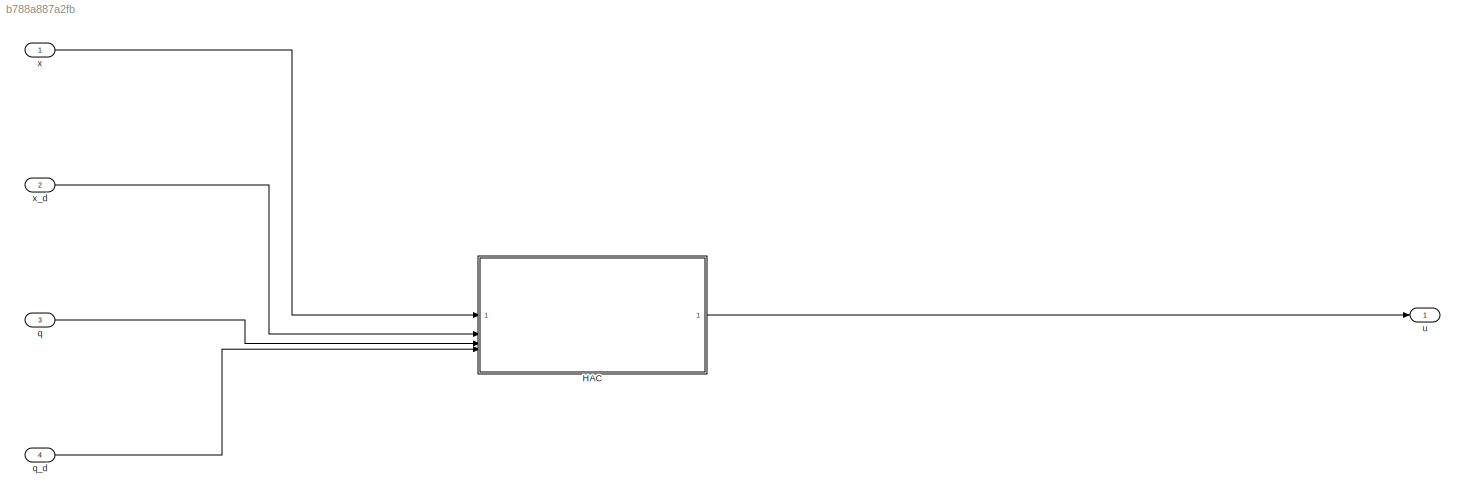
MODEL slx_b788a887a2fb
KIND model
CONFIG AbsTol = auto
CONFIG EnableMultiTasking = off
CONFIG FixedStep = auto
CONFIG MaxStep = auto
CONFIG MinStep = auto
CONFIG RelTol = 1e-3
CONFIG SampleTimeConstraint = Unconstrained
CONFIG SolverName = VariableStepAuto
CONFIG StartTime = 0.0
CONFIG StopTime = 10.0
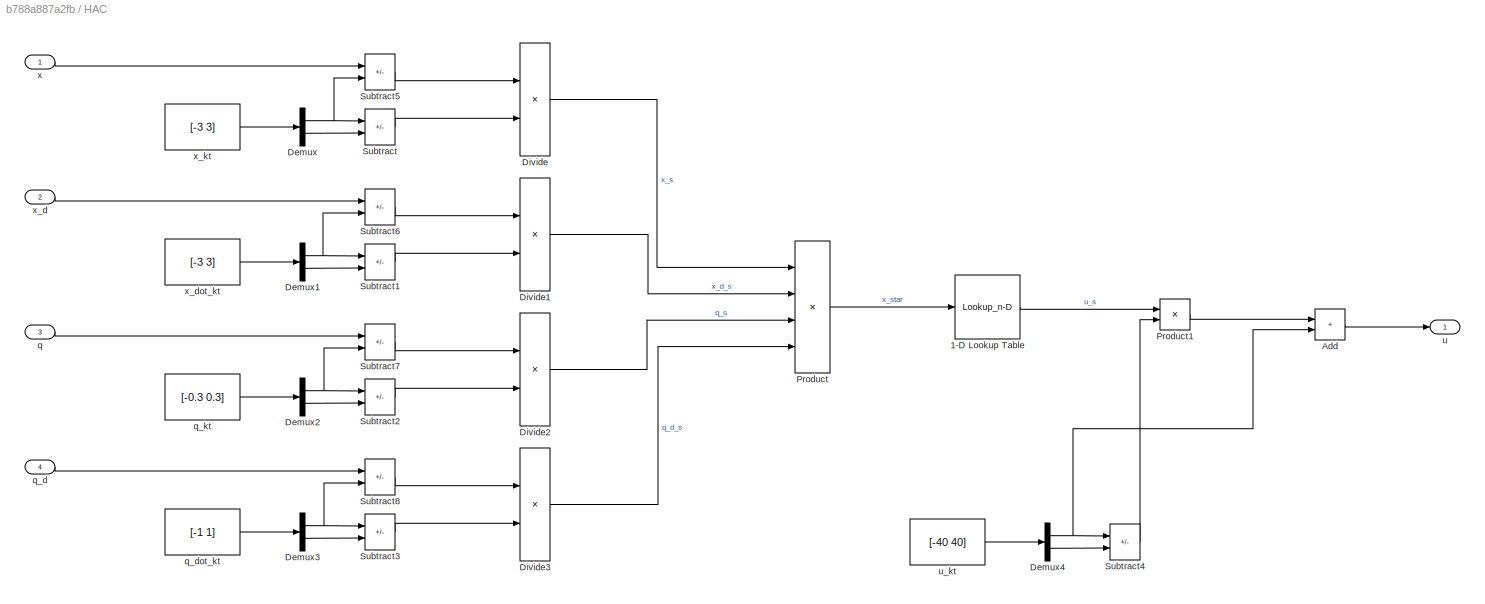
BLOCK [SubSystem] HAC
BLOCK [Lookup_n-D] HAC/1-D Lookup Table
  BreakpointsForDimension1 = [0 0.00390625 0.0078125	0.01171875 0.015625	0.0234375 0.03125	0.03515625	0.046875	0.0625	0.0703125	0.09375	0.10546875	0.140625	0.2109375	0.31640625]
  InputPortMap = u0
  InternalRulePriority = Speed
  InterpMethod = Akima spline
  NumberOfTableDimensions = 1
  RndMeth = Simplest
  Table = [0 0.15	0.15	0.25	0.25	0.375	0.375	0.5	0.5	0.5	0.625	0.625	0.75	0.75	0.825	0.825]
BLOCK [Sum] HAC/Add
  IconShape = rectangular
BLOCK [Demux] HAC/Demux
  Outputs = 2
BLOCK [Demux] HAC/Demux1
  Outputs = 2
BLOCK [Demux] HAC/Demux2
  Outputs = 2
BLOCK [Demux] HAC/Demux3
  Outputs = 2
BLOCK [Demux] HAC/Demux4
  Outputs = 2
BLOCK [Product] HAC/Divide
  Inputs = */
BLOCK [Product] HAC/Divide1
  Inputs = */
BLOCK [Product] HAC/Divide2
  Inputs = */
BLOCK [Product] HAC/Divide3
  Inputs = */
BLOCK [Product] HAC/Product
  Inputs = 4
BLOCK [Product] HAC/Product1
BLOCK [Sum] HAC/Subtract
  IconShape = rectangular
  Inputs = -+
BLOCK [Sum] HAC/Subtract1
  IconShape = rectangular
  Inputs = -+
BLOCK [Sum] HAC/Subtract2
  IconShape = rectangular
  Inputs = -+
BLOCK [Sum] HAC/Subtract3
  IconShape = rectangular
  Inputs = -+
BLOCK [Sum] HAC/Subtract4
  IconShape = rectangular
  Inputs = -+
BLOCK [Sum] HAC/Subtract5
  IconShape = rectangular
  Inputs = +-
BLOCK [Sum] HAC/Subtract6
  IconShape = rectangular
  Inputs = +-
BLOCK [Sum] HAC/Subtract7
  IconShape = rectangular
  Inputs = +-
BLOCK [Sum] HAC/Subtract8
  IconShape = rectangular
  Inputs = +-
BLOCK [Inport] HAC/q
  Port = 3
BLOCK [Inport] HAC/q_d
  Port = 4
BLOCK [Constant] HAC/q_dot_kt
  Value = [-1 1]
  VectorParams1D = off
BLOCK [Constant] HAC/q_kt
  Value = [-0.3 0.3]
  VectorParams1D = off
BLOCK [Outport] HAC/u
BLOCK [Constant] HAC/u_kt
  Value = [-40 40]
  VectorParams1D = off
BLOCK [Inport] HAC/x
BLOCK [Inport] HAC/x_d
  Port = 2
BLOCK [Constant] HAC/x_dot_kt
  Value = [-3 3]
  VectorParams1D = off
BLOCK [Constant] HAC/x_kt
  Value = [-3 3]
  VectorParams1D = off
BLOCK [Inport] q
  Port = 3
BLOCK [Inport] q_d
  Port = 4
BLOCK [Outport] u
BLOCK [Inport] x
BLOCK [Inport] x_d
  Port = 2
LINE HAC/1-D Lookup Table:1 -> HAC/Product1:1
LINE HAC/Add:1 -> HAC/u:1
NET HAC/Demux1:1 -> HAC/Subtract1:1, HAC/Subtract6:2
LINE HAC/Demux1:2 -> HAC/Subtract1:2
NET HAC/Demux2:1 -> HAC/Subtract2:1, HAC/Subtract7:2
LINE HAC/Demux2:2 -> HAC/Subtract2:2
NET HAC/Demux3:1 -> HAC/Subtract3:1, HAC/Subtract8:2
LINE HAC/Demux3:2 -> HAC/Subtract3:2
NET HAC/Demux4:1 -> HAC/Add:2, HAC/Subtract4:1
LINE HAC/Demux4:2 -> HAC/Subtract4:2
NET HAC/Demux:1 -> HAC/Subtract5:2, HAC/Subtract:1
LINE HAC/Demux:2 -> HAC/Subtract:2
LINE HAC/Divide1:1 -> HAC/Product:2
LINE HAC/Divide2:1 -> HAC/Product:3
LINE HAC/Divide3:1 -> HAC/Product:4
LINE HAC/Divide:1 -> HAC/Product:1
LINE HAC/Product1:1 -> HAC/Add:1
LINE HAC/Product:1 -> HAC/1-D Lookup Table:1
LINE HAC/Subtract1:1 -> HAC/Divide1:2
LINE HAC/Subtract2:1 -> HAC/Divide2:2
LINE HAC/Subtract3:1 -> HAC/Divide3:2
LINE HAC/Subtract4:1 -> HAC/Product1:2
LINE HAC/Subtract5:1 -> HAC/Divide:1
LINE HAC/Subtract6:1 -> HAC/Divide1:1
LINE HAC/Subtract7:1 -> HAC/Divide2:1
LINE HAC/Subtract8:1 -> HAC/Divide3:1
LINE HAC/Subtract:1 -> HAC/Divide:2
LINE HAC/q:1 -> HAC/Subtract7:1
LINE HAC/q_d:1 -> HAC/Subtract8:1
LINE HAC/q_dot_kt:1 -> HAC/Demux3:1
LINE HAC/q_kt:1 -> HAC/Demux2:1
LINE HAC/u_kt:1 -> HAC/Demux4:1
LINE HAC/x:1 -> HAC/Subtract5:1
LINE HAC/x_d:1 -> HAC/Subtract6:1
LINE HAC/x_dot_kt:1 -> HAC/Demux1:1
LINE HAC/x_kt:1 -> HAC/Demux:1
LINE HAC:1 -> u:1
LINE q:1 -> HAC:3
LINE q_d:1 -> HAC:4
LINE x:1 -> HAC:1
LINE x_d:1 -> HAC:2
note: NET lines group one-source signal fan-out (src -> all destinations, sorted); 1:1 wires keep LINE
